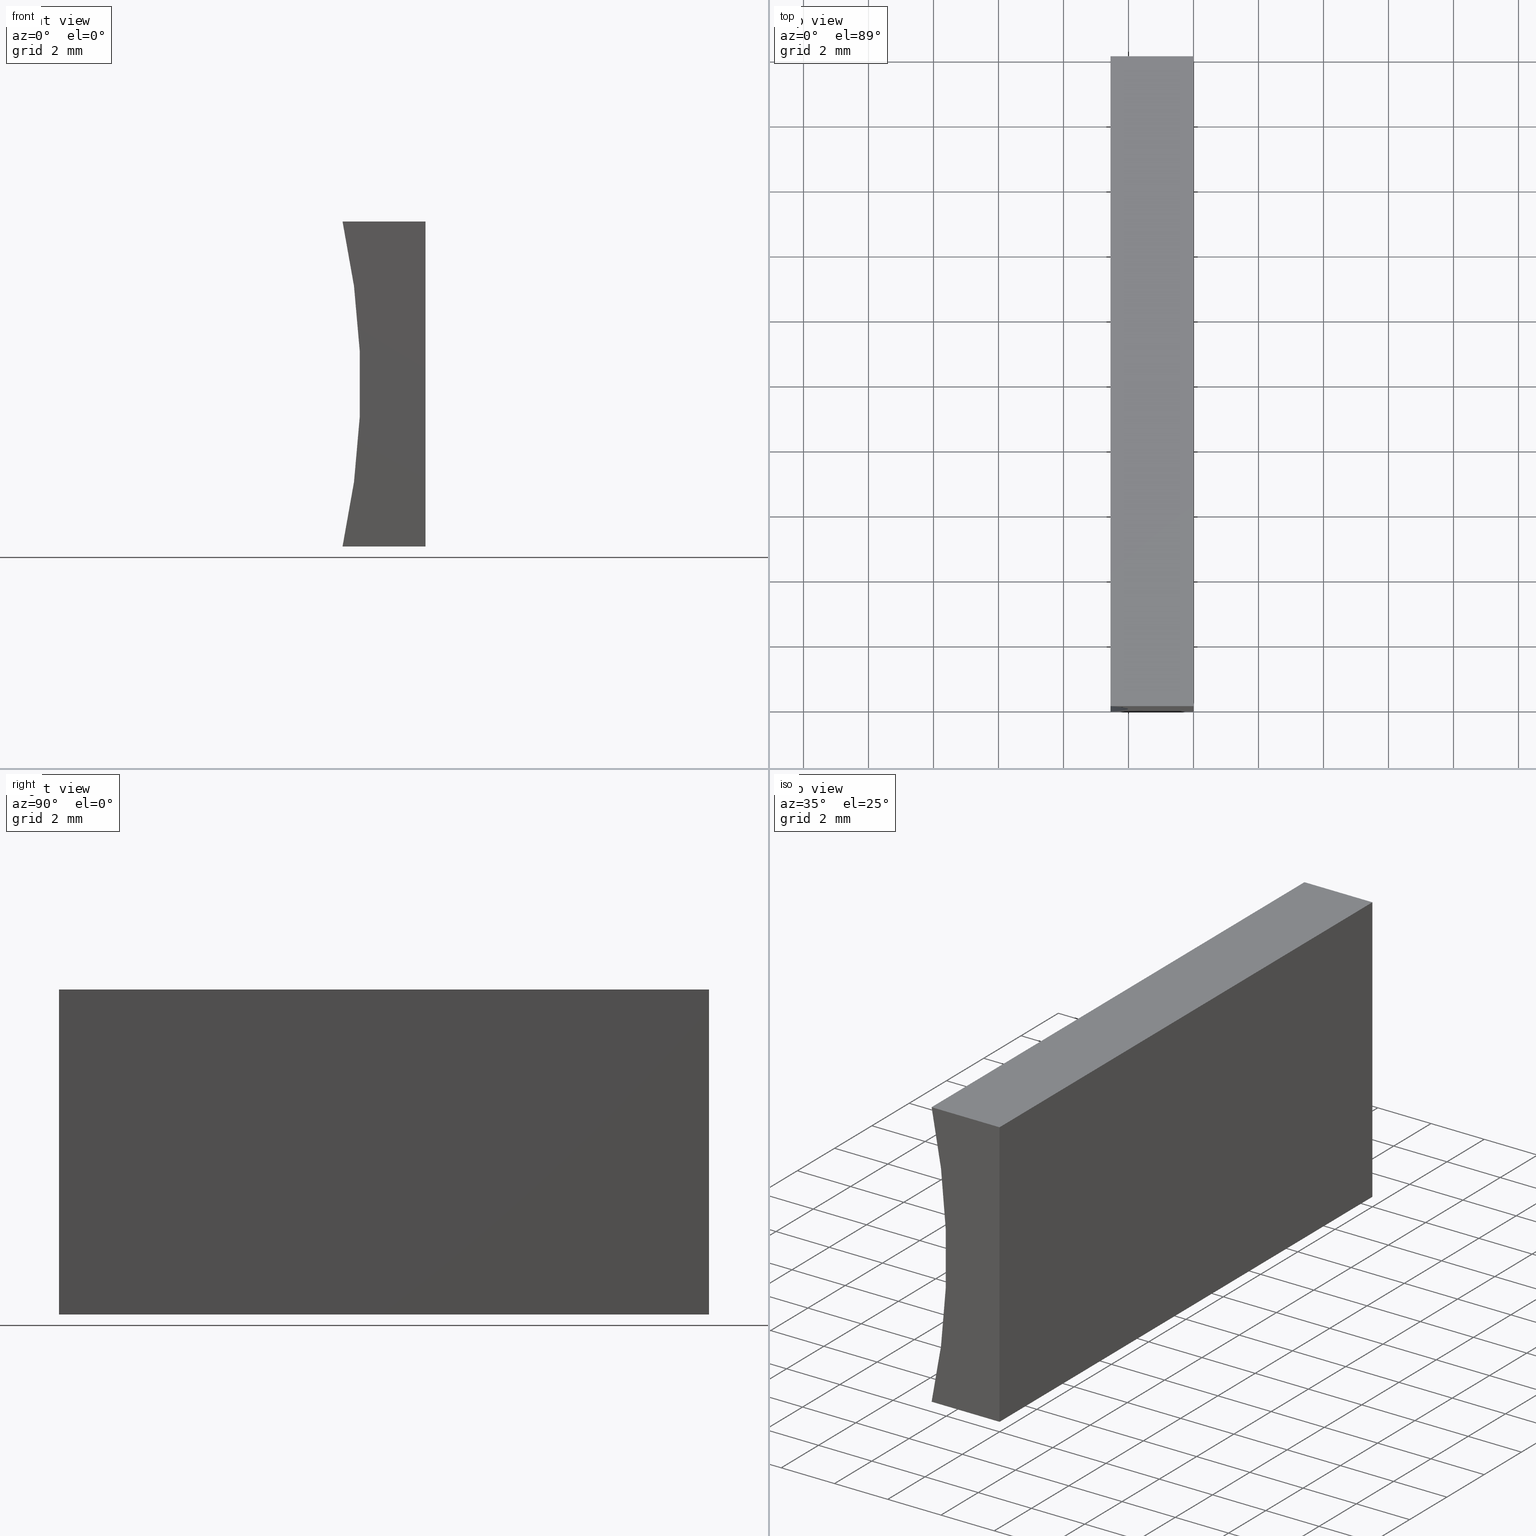
[diagram: canonical four-view strip — front | top / right | iso, engineering-drawing reading convention]
A machine part, canonical four-view strip (front | top / right | iso — engineering-drawing reading convention). The complete STEP part file that produces these views, byte-faithful:
ISO-10303-21;
HEADER;
FILE_DESCRIPTION (( 'STEP AP214' ),
    '1' );
FILE_NAME ('155479.STEP',
    '2019-07-03T07:41:41',
    ( 'user' ),
    ( '΢���й�' ),
    'SwSTEP 2.0',
    'SolidWorks 2016',
    '' );
FILE_SCHEMA (( 'AUTOMOTIVE_DESIGN' ));
ENDSEC;

DATA;
#1 = DIRECTION ( 'NONE',  ( -6.123233995736766000E-017, -0.0000000000000000000, -1.000000000000000000 ) ) ;
#2 = EDGE_CURVE ( 'NONE', #81, #24, #77, .T. ) ;
#3 = DIRECTION ( 'NONE',  ( 1.000000000000000000, 0.0000000000000000000, 6.797444814751702500E-016 ) ) ;
#4 = EDGE_CURVE ( 'NONE', #35, #75, #27, .T. ) ;
#5 = ORIENTED_EDGE ( 'NONE', *, *, #142, .F. ) ;
#6 =( NAMED_UNIT ( * ) PLANE_ANGLE_UNIT ( ) SI_UNIT ( $, .RADIAN. ) );
#7 = EDGE_CURVE ( 'NONE', #150, #12, #74, .T. ) ;
#8 = ORIENTED_EDGE ( 'NONE', *, *, #4, .T. ) ;
#9 = ORIENTED_EDGE ( 'NONE', *, *, #7, .T. ) ;
#10 = DIRECTION ( 'NONE',  ( -0.0000000000000000000, -1.000000000000000000, -0.0000000000000000000 ) ) ;
#11 = PRODUCT_RELATED_PRODUCT_CATEGORY ( 'part', '', ( #128 ) ) ;
#12 = VERTEX_POINT ( 'NONE', #91 ) ;
#13 = ADVANCED_FACE ( 'NONE', ( #169 ), #44, .T. ) ;
#14 =( GEOMETRIC_REPRESENTATION_CONTEXT ( 3 ) GLOBAL_UNCERTAINTY_ASSIGNED_CONTEXT ( ( #61 ) ) GLOBAL_UNIT_ASSIGNED_CONTEXT ( ( #174, #157, #34 ) ) REPRESENTATION_CONTEXT ( 'NONE', 'WORKASPACE' ) );
#15 = AXIS2_PLACEMENT_3D ( 'NONE', #103, #203, #186 ) ;
#16 = ORIENTED_EDGE ( 'NONE', *, *, #142, .T. ) ;
#17 = ORIENTED_EDGE ( 'NONE', *, *, #121, .F. ) ;
#18 = AXIS2_PLACEMENT_3D ( 'NONE', #55, #175, #69 ) ;
#19 = EDGE_LOOP ( 'NONE', ( #106, #143, #5, #30 ) ) ;
#20 = CARTESIAN_POINT ( 'NONE',  ( 0.0000000000000000000, 20.00000000000000000, 0.0000000000000000000 ) ) ;
#21 = ORIENTED_EDGE ( 'NONE', *, *, #85, .F. ) ;
#22 = CARTESIAN_POINT ( 'NONE',  ( 0.0000000000000000000, 0.0000000000000000000, 0.0000000000000000000 ) ) ;
#23 = SURFACE_SIDE_STYLE ('',( #151 ) ) ;
#24 = VERTEX_POINT ( 'NONE', #86 ) ;
#25 = SURFACE_SIDE_STYLE ('',( #140 ) ) ;
#26 = CLOSED_SHELL ( 'NONE', ( #156, #98, #148, #138, #13, #33 ) ) ;
#27 = CIRCLE ( 'NONE', #147, 22.92000000000000200 ) ;
#28 = SURFACE_STYLE_USAGE ( .BOTH. , #25 ) ;
#29 = DIRECTION ( 'NONE',  ( -0.0000000000000000000, -1.000000000000000000, -0.0000000000000000000 ) ) ;
#30 = ORIENTED_EDGE ( 'NONE', *, *, #104, .T. ) ;
#31 = ORIENTED_EDGE ( 'NONE', *, *, #109, .T. ) ;
#32 = DIRECTION ( 'NONE',  ( -0.0000000000000000000, -1.000000000000000000, -0.0000000000000000000 ) ) ;
#33 = ADVANCED_FACE ( 'NONE', ( #161 ), #179, .F. ) ;
#34 =( NAMED_UNIT ( * ) SI_UNIT ( $, .STERADIAN. ) SOLID_ANGLE_UNIT ( ) );
#35 = VERTEX_POINT ( 'NONE', #72 ) ;
#36 = PRESENTATION_LAYER_ASSIGNMENT (  '', '', ( #46 ) ) ;
#37 = VECTOR ( 'NONE', #176, 1000.000000000000000 ) ;
#38 = ORIENTED_EDGE ( 'NONE', *, *, #85, .T. ) ;
#39 = ORIENTED_EDGE ( 'NONE', *, *, #185, .T. ) ;
#40 = EDGE_CURVE ( 'NONE', #35, #81, #70, .T. ) ;
#41 = FACE_OUTER_BOUND ( 'NONE', #66, .T. ) ;
#42 = COLOUR_RGB ( '',1.000000000000000000, 1.000000000000000000, 1.000000000000000000 ) ;
#43 = ORIENTED_EDGE ( 'NONE', *, *, #2, .F. ) ;
#44 = PLANE ( 'NONE',  #162 ) ;
#45 = EDGE_LOOP ( 'NONE', ( #190, #17, #187, #43 ) ) ;
#46 = STYLED_ITEM ( 'NONE', ( #152 ), #129 ) ;
#47 = CARTESIAN_POINT ( 'NONE',  ( 6.123233995736766300E-016, 0.0000000000000000000, 10.00000000000000000 ) ) ;
#48 = CARTESIAN_POINT ( 'NONE',  ( -24.92000000000000200, 20.00000000000000000, 5.000000000000003600 ) ) ;
#49 = VECTOR ( 'NONE', #149, 1000.000000000000000 ) ;
#50 = ORIENTED_EDGE ( 'NONE', *, *, #4, .F. ) ;
#51 = CARTESIAN_POINT ( 'NONE',  ( -24.92000000000000200, 20.00000000000000000, 5.000000000000003600 ) ) ;
#52 = CARTESIAN_POINT ( 'NONE',  ( 0.0000000000000000000, 20.00000000000000000, 0.0000000000000000000 ) ) ;
#53 = MECHANICAL_DESIGN_GEOMETRIC_PRESENTATION_REPRESENTATION (  '', ( #46 ), #189 ) ;
#54 = FACE_OUTER_BOUND ( 'NONE', #19, .T. ) ;
#55 = CARTESIAN_POINT ( 'NONE',  ( -24.92000000000000200, 0.0000000000000000000, 5.000000000000003600 ) ) ;
#56 = EDGE_LOOP ( 'NONE', ( #100, #78, #50, #108 ) ) ;
#57 = MECHANICAL_DESIGN_GEOMETRIC_PRESENTATION_REPRESENTATION (  '', ( #137 ), #14 ) ;
#58 = AXIS2_PLACEMENT_3D ( 'NONE', #51, #180, #123 ) ;
#59 = DIRECTION ( 'NONE',  ( 1.000000000000000000, 0.0000000000000000000, 0.0000000000000000000 ) ) ;
#60 = DIRECTION ( 'NONE',  ( 0.0000000000000000000, 0.0000000000000000000, 1.000000000000000000 ) ) ;
#61 = UNCERTAINTY_MEASURE_WITH_UNIT (LENGTH_MEASURE( 1.000000000000000100E-005 ), #174, 'distance_accuracy_value', 'NONE');
#62 = SURFACE_STYLE_USAGE ( .BOTH. , #23 ) ;
#63 = CARTESIAN_POINT ( 'NONE',  ( 0.0000000000000000000, 20.00000000000000000, 0.0000000000000000000 ) ) ;
#64 = PLANE ( 'NONE',  #115 ) ;
#65 = FILL_AREA_STYLE_COLOUR ( '', #93 ) ;
#66 = EDGE_LOOP ( 'NONE', ( #31, #124, #141, #38 ) ) ;
#67 = LINE ( 'NONE', #125, #118 ) ;
#68 = AXIS2_PLACEMENT_3D ( 'NONE', #22, #101, #59 ) ;
#69 = DIRECTION ( 'NONE',  ( 0.0000000000000000000, -0.0000000000000000000, 1.000000000000000000 ) ) ;
#70 = LINE ( 'NONE', #122, #172 ) ;
#71 = CARTESIAN_POINT ( 'NONE',  ( 6.123233995736766300E-016, 20.00000000000000000, 10.00000000000000000 ) ) ;
#72 = CARTESIAN_POINT ( 'NONE',  ( -2.552022889854344000, 20.00000000000000000, -4.336808689942017700E-015 ) ) ;
#73 = EDGE_CURVE ( 'NONE', #24, #184, #155, .T. ) ;
#74 = LINE ( 'NONE', #20, #188 ) ;
#75 = VERTEX_POINT ( 'NONE', #167 ) ;
#76 = FILL_AREA_STYLE ('',( #65 ) ) ;
#77 = CIRCLE ( 'NONE', #131, 22.92000000000000200 ) ;
#78 = ORIENTED_EDGE ( 'NONE', *, *, #104, .F. ) ;
#79 = PLANE ( 'NONE',  #15 ) ;
#80 = DIRECTION ( 'NONE',  ( 1.000000000000000000, -0.0000000000000000000, -6.797444814751704400E-016 ) ) ;
#81 = VERTEX_POINT ( 'NONE', #173 ) ;
#82 = CARTESIAN_POINT ( 'NONE',  ( -24.92000000000000200, 20.00000000000000000, 5.000000000000003600 ) ) ;
#83 =( NAMED_UNIT ( * ) SI_UNIT ( $, .STERADIAN. ) SOLID_ANGLE_UNIT ( ) );
#84 = VECTOR ( 'NONE', #29, 1000.000000000000000 ) ;
#85 = EDGE_CURVE ( 'NONE', #12, #178, #195, .T. ) ;
#86 = CARTESIAN_POINT ( 'NONE',  ( -2.552022889854343600, 0.0000000000000000000, 10.00000000000000200 ) ) ;
#87 = CARTESIAN_POINT ( 'NONE',  ( 0.0000000000000000000, 0.0000000000000000000, 0.0000000000000000000 ) ) ;
#88 = CARTESIAN_POINT ( 'NONE',  ( -24.92000000000000200, 0.0000000000000000000, 5.000000000000003600 ) ) ;
#89 = VECTOR ( 'NONE', #99, 1000.000000000000000 ) ;
#90 = PRODUCT_DEFINITION_FORMATION_WITH_SPECIFIED_SOURCE ( '�κ�', '', #128, .NOT_KNOWN. ) ;
#91 = CARTESIAN_POINT ( 'NONE',  ( 0.0000000000000000000, 20.00000000000000000, 0.0000000000000000000 ) ) ;
#92 = CARTESIAN_POINT ( 'NONE',  ( 0.0000000000000000000, 20.00000000000000000, 0.0000000000000000000 ) ) ;
#93 = COLOUR_RGB ( '',1.000000000000000000, 1.000000000000000000, 1.000000000000000000 ) ;
#94 = APPLICATION_CONTEXT ( 'automotive_design' ) ;
#95 = FACE_OUTER_BOUND ( 'NONE', #56, .T. ) ;
#96 =( NAMED_UNIT ( * ) PLANE_ANGLE_UNIT ( ) SI_UNIT ( $, .RADIAN. ) );
#97 = CARTESIAN_POINT ( 'NONE',  ( 0.0000000000000000000, 20.00000000000000000, 0.0000000000000000000 ) ) ;
#98 = ADVANCED_FACE ( 'NONE', ( #95 ), #160, .F. ) ;
#99 = DIRECTION ( 'NONE',  ( 1.000000000000000000, -0.0000000000000000000, -6.797444814751704400E-016 ) ) ;
#100 = ORIENTED_EDGE ( 'NONE', *, *, #2, .T. ) ;
#101 = DIRECTION ( 'NONE',  ( 0.0000000000000000000, 0.0000000000000000000, 1.000000000000000000 ) ) ;
#102 = FILL_AREA_STYLE ('',( #139 ) ) ;
#103 = CARTESIAN_POINT ( 'NONE',  ( 6.123233995736766300E-016, 20.00000000000000000, 10.00000000000000000 ) ) ;
#104 = EDGE_CURVE ( 'NONE', #75, #24, #126, .T. ) ;
#105 = CARTESIAN_POINT ( 'NONE',  ( 6.123233995736766300E-016, 20.00000000000000000, 10.00000000000000000 ) ) ;
#106 = ORIENTED_EDGE ( 'NONE', *, *, #73, .T. ) ;
#107 = SHAPE_DEFINITION_REPRESENTATION ( #111, #119 ) ;
#108 = ORIENTED_EDGE ( 'NONE', *, *, #40, .T. ) ;
#109 = EDGE_CURVE ( 'NONE', #178, #81, #164, .T. ) ;
#110 = DIRECTION ( 'NONE',  ( -6.797444814751702500E-016, 0.0000000000000000000, 1.000000000000000000 ) ) ;
#111 = PRODUCT_DEFINITION_SHAPE ( 'NONE', 'NONE',  #145 ) ;
#112 = FACE_OUTER_BOUND ( 'NONE', #202, .T. ) ;
#113 = CARTESIAN_POINT ( 'NONE',  ( -2.552022889854343600, 20.00000000000000000, 10.00000000000000200 ) ) ;
#114 =( LENGTH_UNIT ( ) NAMED_UNIT ( * ) SI_UNIT ( .MILLI., .METRE. ) );
#115 = AXIS2_PLACEMENT_3D ( 'NONE', #52, #170, #146 ) ;
#116 =( NAMED_UNIT ( * ) SI_UNIT ( $, .STERADIAN. ) SOLID_ANGLE_UNIT ( ) );
#117 = CARTESIAN_POINT ( 'NONE',  ( 0.0000000000000000000, 0.0000000000000000000, 0.0000000000000000000 ) ) ;
#118 = VECTOR ( 'NONE', #200, 1000.000000000000000 ) ;
#119 = ADVANCED_BREP_SHAPE_REPRESENTATION ( '155479', ( #129, #68 ), #194 ) ;
#120 = CARTESIAN_POINT ( 'NONE',  ( 6.123233995736766300E-016, 0.0000000000000000000, 10.00000000000000000 ) ) ;
#121 = EDGE_CURVE ( 'NONE', #184, #178, #67, .T. ) ;
#122 = CARTESIAN_POINT ( 'NONE',  ( -2.552022889854344000, 20.00000000000000000, -4.336808689942017700E-015 ) ) ;
#123 = DIRECTION ( 'NONE',  ( 0.0000000000000000000, 0.0000000000000000000, -1.000000000000000000 ) ) ;
#124 = ORIENTED_EDGE ( 'NONE', *, *, #40, .F. ) ;
#125 = CARTESIAN_POINT ( 'NONE',  ( 0.0000000000000000000, 0.0000000000000000000, 0.0000000000000000000 ) ) ;
#126 = LINE ( 'NONE', #113, #158 ) ;
#127 = DIRECTION ( 'NONE',  ( 0.0000000000000000000, 0.0000000000000000000, 1.000000000000000000 ) ) ;
#128 = PRODUCT ( '155479', '155479', '', ( #168 ) ) ;
#129 = MANIFOLD_SOLID_BREP ( '͹̨-����1', #26 ) ;
#130 = LINE ( 'NONE', #63, #49 ) ;
#131 = AXIS2_PLACEMENT_3D ( 'NONE', #88, #10, #60 ) ;
#132 = CARTESIAN_POINT ( 'NONE',  ( 6.123233995736766300E-016, 20.00000000000000000, 10.00000000000000000 ) ) ;
#133 = ORIENTED_EDGE ( 'NONE', *, *, #121, .T. ) ;
#134 = APPLICATION_CONTEXT ( 'automotive_design' ) ;
#135 =( LENGTH_UNIT ( ) NAMED_UNIT ( * ) SI_UNIT ( .MILLI., .METRE. ) );
#136 = VECTOR ( 'NONE', #80, 1000.000000000000000 ) ;
#137 = STYLED_ITEM ( 'NONE', ( #183 ), #119 ) ;
#138 = ADVANCED_FACE ( 'NONE', ( #112 ), #64, .F. ) ;
#139 = FILL_AREA_STYLE_COLOUR ( '', #42 ) ;
#140 = SURFACE_STYLE_FILL_AREA ( #102 ) ;
#141 = ORIENTED_EDGE ( 'NONE', *, *, #185, .F. ) ;
#142 = EDGE_CURVE ( 'NONE', #75, #150, #193, .T. ) ;
#143 = ORIENTED_EDGE ( 'NONE', *, *, #204, .F. ) ;
#144 = DIRECTION ( 'NONE',  ( -0.0000000000000000000, -1.000000000000000000, -0.0000000000000000000 ) ) ;
#145 = PRODUCT_DEFINITION ( 'δ֪', '', #90, #197 ) ;
#146 = DIRECTION ( 'NONE',  ( 6.123233995736766000E-017, 0.0000000000000000000, 1.000000000000000000 ) ) ;
#147 = AXIS2_PLACEMENT_3D ( 'NONE', #82, #32, #127 ) ;
#148 = ADVANCED_FACE ( 'NONE', ( #54 ), #79, .F. ) ;
#149 = DIRECTION ( 'NONE',  ( -1.000000000000000000, 0.0000000000000000000, -6.797444814751702500E-016 ) ) ;
#150 = VERTEX_POINT ( 'NONE', #71 ) ;
#151 = SURFACE_STYLE_FILL_AREA ( #76 ) ;
#152 = PRESENTATION_STYLE_ASSIGNMENT (( #62 ) ) ;
#153 = APPLICATION_PROTOCOL_DEFINITION ( 'draft international standard', 'automotive_design', 1998, #94 ) ;
#154 = EDGE_LOOP ( 'NONE', ( #39, #8, #16, #9 ) ) ;
#155 = LINE ( 'NONE', #120, #136 ) ;
#156 = ADVANCED_FACE ( 'NONE', ( #41 ), #159, .F. ) ;
#157 =( NAMED_UNIT ( * ) PLANE_ANGLE_UNIT ( ) SI_UNIT ( $, .RADIAN. ) );
#158 = VECTOR ( 'NONE', #181, 1000.000000000000000 ) ;
#159 = PLANE ( 'NONE',  #191 ) ;
#160 = CYLINDRICAL_SURFACE ( 'NONE', #58, 22.92000000000000200 ) ;
#161 = FACE_OUTER_BOUND ( 'NONE', #45, .T. ) ;
#162 = AXIS2_PLACEMENT_3D ( 'NONE', #48, #171, #163 ) ;
#163 = DIRECTION ( 'NONE',  ( 0.0000000000000000000, -0.0000000000000000000, 1.000000000000000000 ) ) ;
#164 = LINE ( 'NONE', #117, #196 ) ;
#165 = ORIENTED_EDGE ( 'NONE', *, *, #7, .F. ) ;
#166 = ORIENTED_EDGE ( 'NONE', *, *, #204, .T. ) ;
#167 = CARTESIAN_POINT ( 'NONE',  ( -2.552022889854343600, 20.00000000000000000, 10.00000000000000200 ) ) ;
#168 = PRODUCT_CONTEXT ( 'NONE', #94, 'mechanical' ) ;
#169 = FACE_OUTER_BOUND ( 'NONE', #154, .T. ) ;
#170 = DIRECTION ( 'NONE',  ( -1.000000000000000000, 0.0000000000000000000, 6.123233995736766000E-017 ) ) ;
#171 = DIRECTION ( 'NONE',  ( 0.0000000000000000000, 1.000000000000000000, 0.0000000000000000000 ) ) ;
#172 = VECTOR ( 'NONE', #144, 1000.000000000000000 ) ;
#173 = CARTESIAN_POINT ( 'NONE',  ( -2.552022889854344000, 0.0000000000000000000, -4.336808689942017700E-015 ) ) ;
#174 =( LENGTH_UNIT ( ) NAMED_UNIT ( * ) SI_UNIT ( .MILLI., .METRE. ) );
#175 = DIRECTION ( 'NONE',  ( 0.0000000000000000000, 1.000000000000000000, 0.0000000000000000000 ) ) ;
#176 = DIRECTION ( 'NONE',  ( -0.0000000000000000000, -1.000000000000000000, -0.0000000000000000000 ) ) ;
#177 = APPLICATION_PROTOCOL_DEFINITION ( 'draft international standard', 'automotive_design', 1998, #134 ) ;
#178 = VERTEX_POINT ( 'NONE', #87 ) ;
#179 = PLANE ( 'NONE',  #18 ) ;
#180 = DIRECTION ( 'NONE',  ( -0.0000000000000000000, -1.000000000000000000, -0.0000000000000000000 ) ) ;
#181 = DIRECTION ( 'NONE',  ( -0.0000000000000000000, -1.000000000000000000, -0.0000000000000000000 ) ) ;
#182 = UNCERTAINTY_MEASURE_WITH_UNIT (LENGTH_MEASURE( 1.000000000000000100E-005 ), #135, 'distance_accuracy_value', 'NONE');
#183 = PRESENTATION_STYLE_ASSIGNMENT (( #28 ) ) ;
#184 = VERTEX_POINT ( 'NONE', #47 ) ;
#185 = EDGE_CURVE ( 'NONE', #12, #35, #130, .T. ) ;
#186 = DIRECTION ( 'NONE',  ( -1.000000000000000000, 0.0000000000000000000, 6.797444814751704400E-016 ) ) ;
#187 = ORIENTED_EDGE ( 'NONE', *, *, #73, .F. ) ;
#188 = VECTOR ( 'NONE', #1, 1000.000000000000000 ) ;
#189 =( GEOMETRIC_REPRESENTATION_CONTEXT ( 3 ) GLOBAL_UNCERTAINTY_ASSIGNED_CONTEXT ( ( #182 ) ) GLOBAL_UNIT_ASSIGNED_CONTEXT ( ( #135, #6, #116 ) ) REPRESENTATION_CONTEXT ( 'NONE', 'WORKASPACE' ) );
#190 = ORIENTED_EDGE ( 'NONE', *, *, #109, .F. ) ;
#191 = AXIS2_PLACEMENT_3D ( 'NONE', #92, #110, #3 ) ;
#192 = UNCERTAINTY_MEASURE_WITH_UNIT (LENGTH_MEASURE( 1.000000000000000100E-005 ), #114, 'distance_accuracy_value', 'NONE');
#193 = LINE ( 'NONE', #132, #89 ) ;
#194 =( GEOMETRIC_REPRESENTATION_CONTEXT ( 3 ) GLOBAL_UNCERTAINTY_ASSIGNED_CONTEXT ( ( #192 ) ) GLOBAL_UNIT_ASSIGNED_CONTEXT ( ( #114, #96, #83 ) ) REPRESENTATION_CONTEXT ( 'NONE', 'WORKASPACE' ) );
#195 = LINE ( 'NONE', #97, #84 ) ;
#196 = VECTOR ( 'NONE', #199, 1000.000000000000000 ) ;
#197 = PRODUCT_DEFINITION_CONTEXT ( 'detailed design', #134, 'design' ) ;
#198 = PRESENTATION_LAYER_ASSIGNMENT (  '', '', ( #137 ) ) ;
#199 = DIRECTION ( 'NONE',  ( -1.000000000000000000, 0.0000000000000000000, -6.797444814751702500E-016 ) ) ;
#200 = DIRECTION ( 'NONE',  ( -6.123233995736766000E-017, -0.0000000000000000000, -1.000000000000000000 ) ) ;
#201 = LINE ( 'NONE', #105, #37 ) ;
#202 = EDGE_LOOP ( 'NONE', ( #133, #21, #165, #166 ) ) ;
#203 = DIRECTION ( 'NONE',  ( -6.797444814751704400E-016, 0.0000000000000000000, -1.000000000000000000 ) ) ;
#204 = EDGE_CURVE ( 'NONE', #150, #184, #201, .T. ) ;
ENDSEC;
END-ISO-10303-21;
